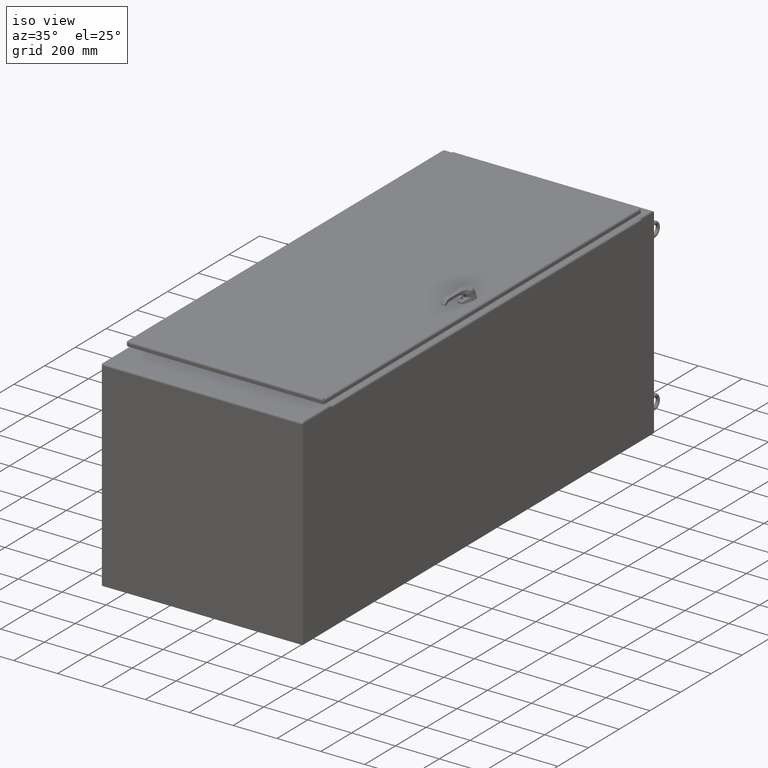
[diagram: clean part render]
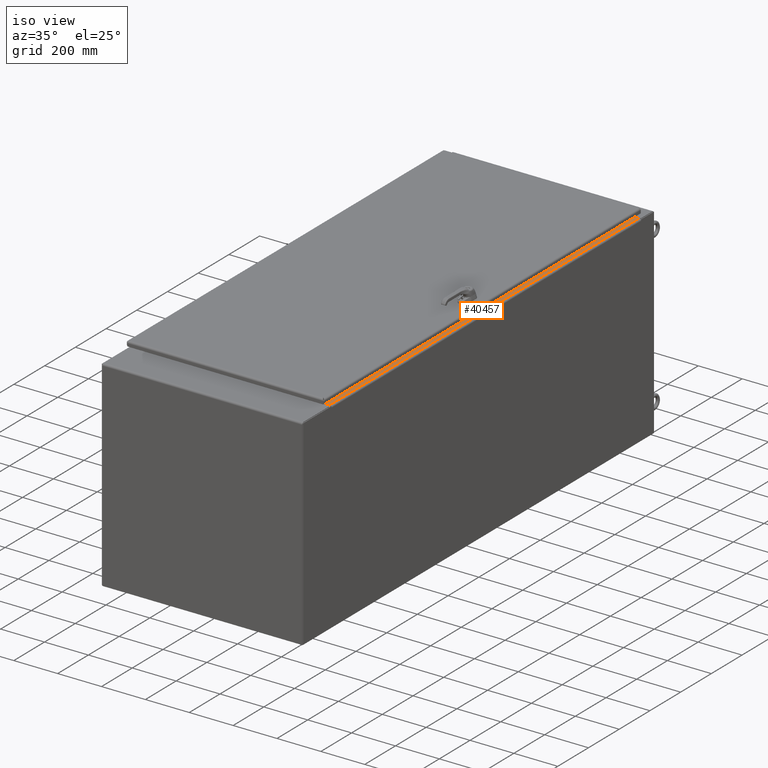
[diagram: same view with one face highlighted and labeled with its STEP entity id]
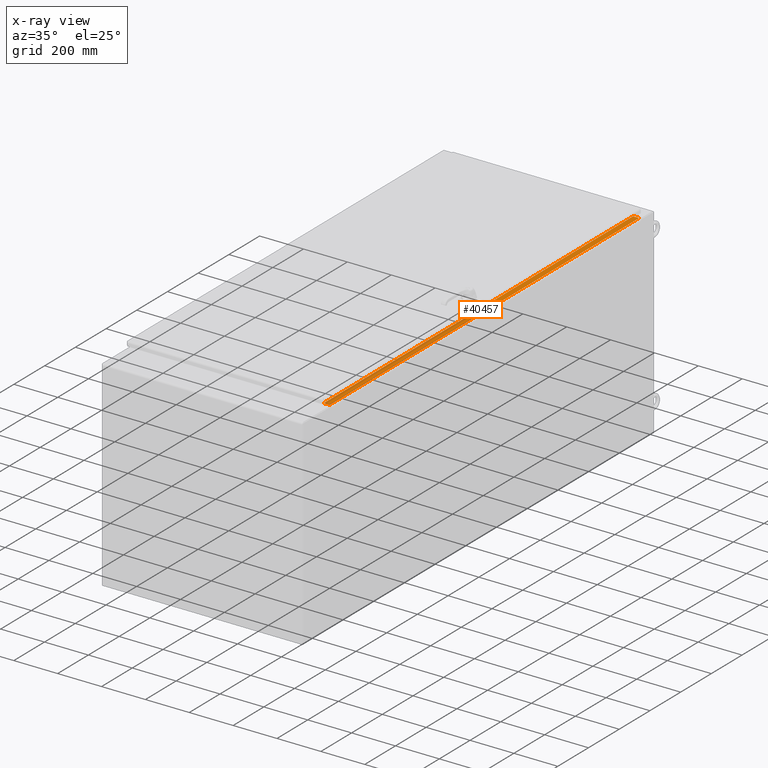
[diagram: x-ray of the same camera — body ghosted, the highlighted face saturated]
A machine part, iso view. The second image highlights one B-rep face of the part: STEP entity #40457.
The next image is the same camera in x-ray: the body ghosted, the highlighted face saturated — about 0% of this face is hidden behind the body in this view.
In plain terms, the highlighted planar face has unit normal (0, -0, -1).
Its self-contained STEP definition (entity closure, byte-faithful):
#5592=FACE_OUTER_BOUND('',#8106,.T.);
#8106=EDGE_LOOP('',(#27046,#27047,#27048,#27049));
#10905=LINE('',#62187,#13860);
#10909=LINE('',#62202,#13864);
#10912=LINE('',#62208,#13867);
#10913=LINE('',#62209,#13868);
#13860=VECTOR('',#49343,0.393700787401575);
#13864=VECTOR('',#49363,0.291080000000001);
#13867=VECTOR('',#49368,0.291080000000001);
#13868=VECTOR('',#49369,0.393700787401575);
#16747=VERTEX_POINT('',#62184);
#16748=VERTEX_POINT('',#62186);
#16751=VERTEX_POINT('',#62201);
#16753=VERTEX_POINT('',#62207);
#20630=EDGE_CURVE('',#16748,#16747,#10905,.T.);
#20637=EDGE_CURVE('',#16751,#16748,#10909,.T.);
#20640=EDGE_CURVE('',#16753,#16747,#10912,.T.);
#20641=EDGE_CURVE('',#16753,#16751,#10913,.T.);
#27046=ORIENTED_EDGE('',*,*,#20630,.T.);
#27047=ORIENTED_EDGE('',*,*,#20640,.F.);
#27048=ORIENTED_EDGE('',*,*,#20641,.T.);
#27049=ORIENTED_EDGE('',*,*,#20637,.T.);
#38812=PLANE('',#44002);
#40457=ADVANCED_FACE('',(#5592),#38812,.F.);
#44002=AXIS2_PLACEMENT_3D('',#62206,#49366,#49367);
#49343=DIRECTION('',(6.21653992852577E-17,-1.,4.40537377246017E-17));
#49363=DIRECTION('',(-1.77635683940025E-15,6.22221013937787E-17,1.));
#49366=DIRECTION('center_axis',(-1.,-6.21653992852577E-17,-1.71424862101657E-15));
#49367=DIRECTION('ref_axis',(-1.71424862101657E-15,-6.22221013937789E-17,
1.));
#49368=DIRECTION('',(-1.77635683940025E-15,6.22221013937787E-17,1.));
#49369=DIRECTION('',(-6.21653992852577E-17,1.,9.72511754946215E-35));
#62184=CARTESIAN_POINT('',(18.0625,-37.6875,1.442875));
#62186=CARTESIAN_POINT('',(18.0625,41.6875,1.442875));
#62187=CARTESIAN_POINT('',(18.0625,21.84375,1.442875));
#62201=CARTESIAN_POINT('',(18.0625,41.6875,0.354000000000001));
#62202=CARTESIAN_POINT('',(18.0625,41.6875,-0.560454789606926));
#62206=CARTESIAN_POINT('Origin',(18.0625,2.,0.792136302598268));
#62207=CARTESIAN_POINT('',(18.0625,-37.6875,0.354000000000001));
#62208=CARTESIAN_POINT('',(18.0625,-37.6875,-0.56045478960692));
#62209=CARTESIAN_POINT('',(18.0625,2.,0.354000000000001));